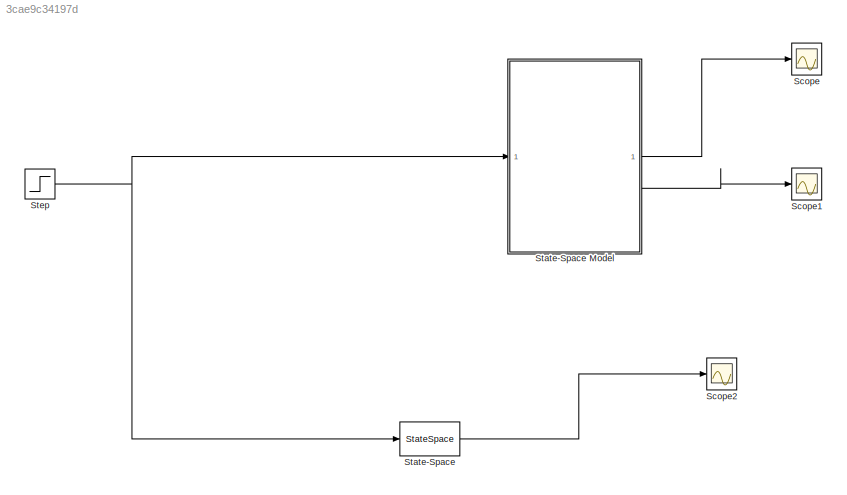
MODEL slx_3cae9c34197d
KIND model
CONFIG AbsTol = auto
CONFIG EnableMultiTasking = off
CONFIG FixedStep = auto
CONFIG MaxStep = auto
CONFIG MinStep = auto
CONFIG RelTol = 1e-3
CONFIG SampleTimeConstraint = Unconstrained
CONFIG SolverName = VariableStepAuto
CONFIG StartTime = 0.0
CONFIG StopTime = 10
BLOCK [Scope] Scope
  Floating = off
  NumInputPorts = 1
  ScopeSpecificationString = Simulink.scopes.TimeScopeBlockCfg('CurrentConfiguration', extmgr.ConfigurationSet(extmgr.Configuration('Core','General UI',true),extmgr.Configuration('Core','Source UI',true),extmgr.Configuration('Sources','WiredSimulink',true),extmgr.Configuration('Visuals','Time Domain',true,'SerializedDisplays',{struct('MinYLimReal','-1.23719','MaxYLimReal','1.24858','YLabelReal','','MinYLimMag','0.00000','MaxY...<+1362ch>
BLOCK [Scope] Scope1
  Floating = off
  NumInputPorts = 1
  ScopeSpecificationString = Simulink.scopes.TimeScopeBlockCfg('CurrentConfiguration', extmgr.ConfigurationSet(extmgr.Configuration('Core','General UI',true),extmgr.Configuration('Core','Source UI',true),extmgr.Configuration('Sources','WiredSimulink',true,'DataLoggingVariableName','ScopeData1'),extmgr.Configuration('Visuals','Time Domain',true,'SerializedDisplays',{struct('MinYLimReal','0.01563','MaxYLimReal','1.10937','YLabe...<+1368ch>
BLOCK [Scope] Scope2
  Floating = off
  NumInputPorts = 1
  ScopeSpecificationString = Simulink.scopes.TimeScopeBlockCfg('CurrentConfiguration', extmgr.ConfigurationSet(extmgr.Configuration('Core','General UI',true),extmgr.Configuration('Core','Source UI',true),extmgr.Configuration('Sources','WiredSimulink',true,'DataLoggingVariableName','ScopeData2'),extmgr.Configuration('Visuals','Time Domain',true,'SerializedDisplays',{struct('MinYLimReal','0.01563','MaxYLimReal','1.10937','YLabe...<+1368ch>
BLOCK [StateSpace] State-Space
  A = A
  B = B
  C = C
  D = D
  InitialCondition = [1;0]
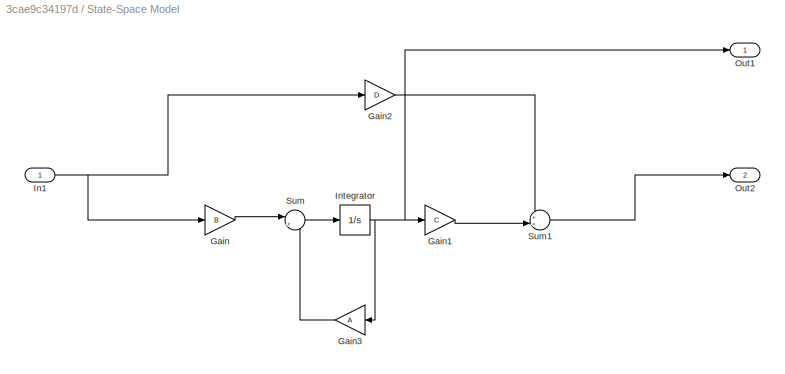
BLOCK [SubSystem] State-Space Model
BLOCK [Gain] State-Space Model/Gain
  Gain = B
  Multiplication = Matrix(K*u)
BLOCK [Gain] State-Space Model/Gain1
  Gain = C
  Multiplication = Matrix(K*u)
BLOCK [Gain] State-Space Model/Gain2
  Gain = D
  Multiplication = Matrix(K*u)
BLOCK [Gain] State-Space Model/Gain3
  Gain = A
  Multiplication = Matrix(K*u)
BLOCK [Inport] State-Space Model/In1
BLOCK [Integrator] State-Space Model/Integrator
  InitialCondition = [1;0]
BLOCK [Outport] State-Space Model/Out1
BLOCK [Outport] State-Space Model/Out2
  Port = 2
BLOCK [Sum] State-Space Model/Sum
  Inputs = |++
BLOCK [Sum] State-Space Model/Sum1
  Inputs = ++|
BLOCK [Step] Step
  SampleTime = 0
LINE State-Space Model/Gain1:1 -> State-Space Model/Sum1:2
LINE State-Space Model/Gain2:1 -> State-Space Model/Sum1:1
LINE State-Space Model/Gain3:1 -> State-Space Model/Sum:2
LINE State-Space Model/Gain:1 -> State-Space Model/Sum:1
NET State-Space Model/In1:1 -> State-Space Model/Gain2:1, State-Space Model/Gain:1
NET State-Space Model/Integrator:1 -> State-Space Model/Gain1:1, State-Space Model/Gain3:1, State-Space Model/Out1:1
LINE State-Space Model/Sum1:1 -> State-Space Model/Out2:1
LINE State-Space Model/Sum:1 -> State-Space Model/Integrator:1
LINE State-Space Model:1 -> Scope:1
LINE State-Space Model:2 -> Scope1:1
LINE State-Space:1 -> Scope2:1
NET Step:1 -> State-Space Model:1, State-Space:1
note: NET lines group one-source signal fan-out (src -> all destinations, sorted); 1:1 wires keep LINE
